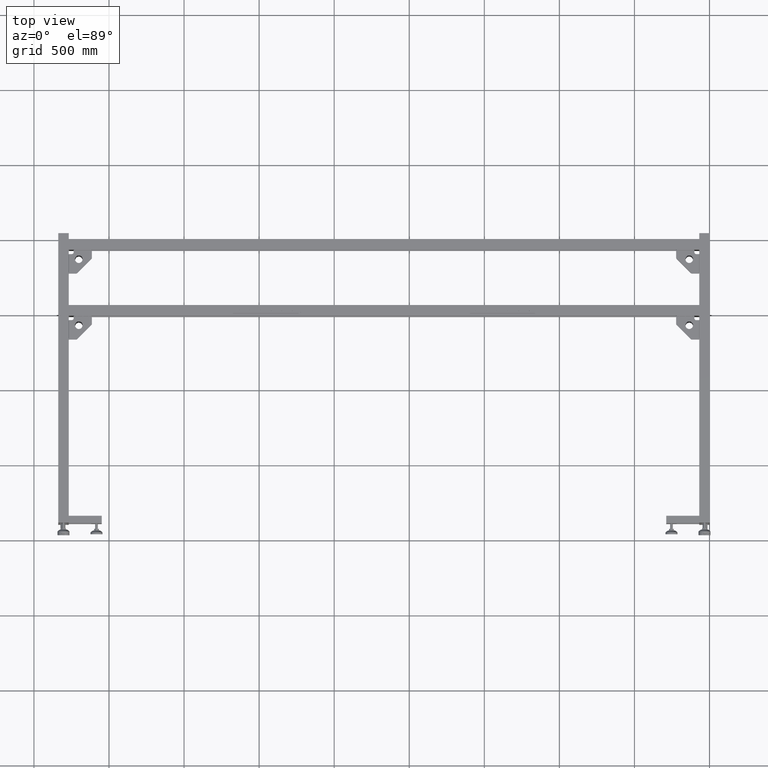
[diagram: clean part render]
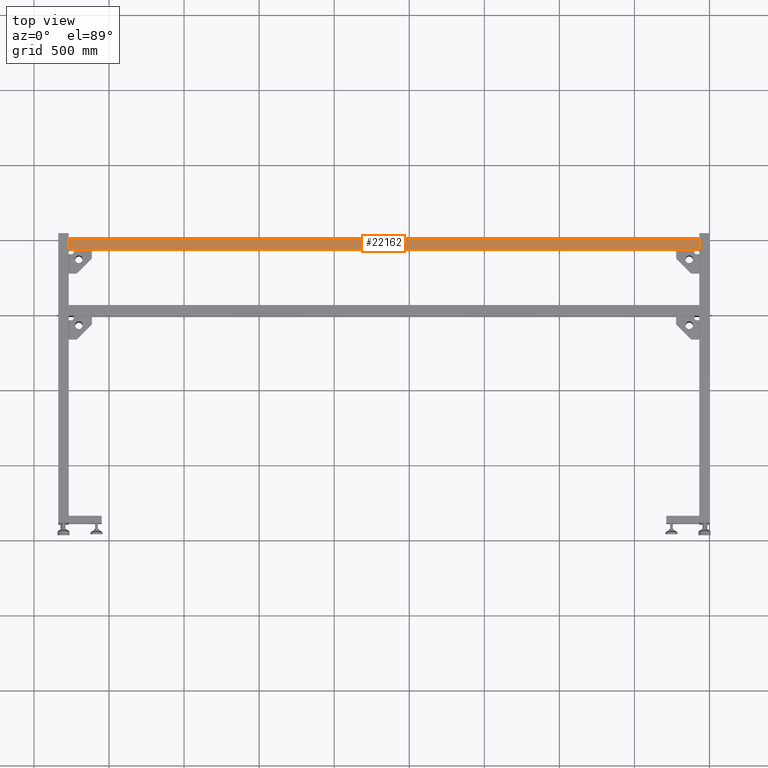
[diagram: same view with one face highlighted and labeled with its STEP entity id]
A machine part, top view. The second image highlights one B-rep face of the part: STEP entity #22162.
In plain terms, the highlighted planar face has unit normal (0, 0, -1).
Its self-contained STEP definition (entity closure, byte-faithful):
#2730 = PLANE ( 'NONE',  #54443 ) ;
#6708 = EDGE_CURVE ( 'NONE', #48508, #76039, #21303, .T. ) ;
#7125 = ORIENTED_EDGE ( 'NONE', *, *, #22605, .T. ) ;
#10117 = CARTESIAN_POINT ( 'NONE',  ( -266.1724874371840883, 926.9410804020125170, 300.0000000000009095 ) ) ;
#10660 = CARTESIAN_POINT ( 'NONE',  ( 2929.827512562816082, 926.9410804020125170, 300.0000000000009095 ) ) ;
#10871 = ORIENTED_EDGE ( 'NONE', *, *, #44010, .F. ) ;
#11170 = DIRECTION ( 'NONE',  ( 0.000000000000000000, 1.000000000000000000, 3.603491776919587486E-15 ) ) ;
#12514 = CARTESIAN_POINT ( 'NONE',  ( 2929.827512562815627, 996.9410804020125170, 300.0000000000011937 ) ) ;
#20629 = VECTOR ( 'NONE', #11170, 1000.000000000000000 ) ;
#21303 = LINE ( 'NONE', #10660, #22744 ) ;
#22162 = ADVANCED_FACE ( 'NONE', ( #66164 ), #2730, .F. ) ;
#22605 = EDGE_CURVE ( 'NONE', #24985, #48508, #52037, .T. ) ;
#22744 = VECTOR ( 'NONE', #35609, 1000.000000000000000 ) ;
#22765 = DIRECTION ( 'NONE',  ( 3.935976484695678884E-31, 3.603491776919587486E-15, -1.000000000000000000 ) ) ;
#24985 = VERTEX_POINT ( 'NONE', #79297 ) ;
#27744 = ORIENTED_EDGE ( 'NONE', *, *, #37072, .F. ) ;
#30159 = CARTESIAN_POINT ( 'NONE',  ( -1266.172487437185964, 996.9410804020118348, 300.0000000000011937 ) ) ;
#30669 = VERTEX_POINT ( 'NONE', #30159 ) ;
#35609 = DIRECTION ( 'NONE',  ( -3.450989802914125775E-16, 1.000000000000000000, 3.603491776919587486E-15 ) ) ;
#35904 = ORIENTED_EDGE ( 'NONE', *, *, #6708, .T. ) ;
#37072 = EDGE_CURVE ( 'NONE', #24985, #30669, #67222, .T. ) ;
#38939 = DIRECTION ( 'NONE',  ( 1.000000000000000000, -1.092267369640097868E-16, 0.000000000000000000 ) ) ;
#41700 = CARTESIAN_POINT ( 'NONE',  ( -266.1724874371843157, 996.9410804020125170, 300.0000000000011937 ) ) ;
#44010 = EDGE_CURVE ( 'NONE', #30669, #76039, #60490, .T. ) ;
#48508 = VERTEX_POINT ( 'NONE', #79920 ) ;
#52037 = LINE ( 'NONE', #57347, #72812 ) ;
#54443 = AXIS2_PLACEMENT_3D ( 'NONE', #10117, #22765, #72708 ) ;
#57347 = CARTESIAN_POINT ( 'NONE',  ( -266.1724874371840883, 926.9410804020125170, 300.0000000000009095 ) ) ;
#60280 = CARTESIAN_POINT ( 'NONE',  ( -1266.172487437185964, 926.9410804020117212, 300.0000000000009095 ) ) ;
#60490 = LINE ( 'NONE', #41700, #74294 ) ;
#66164 = FACE_OUTER_BOUND ( 'NONE', #80042, .T. ) ;
#66257 = DIRECTION ( 'NONE',  ( 1.000000000000000000, -1.092267369640097868E-16, 0.000000000000000000 ) ) ;
#67222 = LINE ( 'NONE', #60280, #20629 ) ;
#72708 = DIRECTION ( 'NONE',  ( 1.092267369640097868E-16, 1.000000000000000000, 3.603491776919587486E-15 ) ) ;
#72812 = VECTOR ( 'NONE', #38939, 1000.000000000000000 ) ;
#74294 = VECTOR ( 'NONE', #66257, 1000.000000000000000 ) ;
#76039 = VERTEX_POINT ( 'NONE', #12514 ) ;
#79297 = CARTESIAN_POINT ( 'NONE',  ( -1266.172487437185964, 926.9410804020117212, 300.0000000000009095 ) ) ;
#79920 = CARTESIAN_POINT ( 'NONE',  ( 2929.827512562816082, 926.9410804020125170, 300.0000000000009095 ) ) ;
#80042 = EDGE_LOOP ( 'NONE', ( #10871, #27744, #7125, #35904 ) ) ;